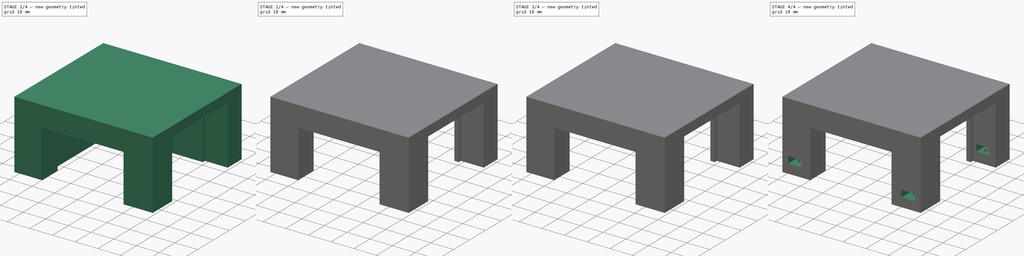
[diagram: build sequence overview — one tinted view per stage of 4, left to right]
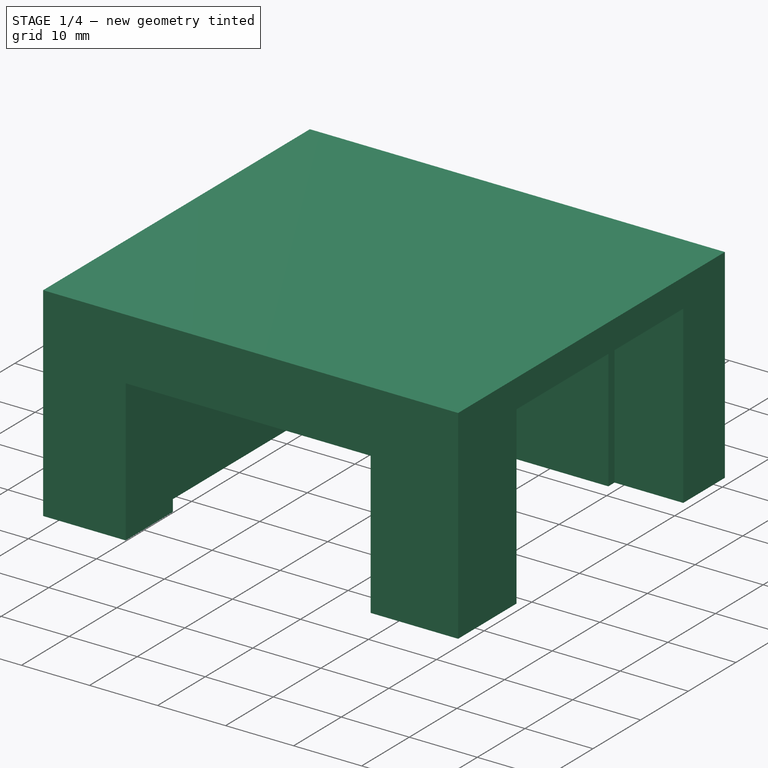
[diagram: stage 1 of 4 — iso view after this stage's code; geometry added in this stage tinted green]
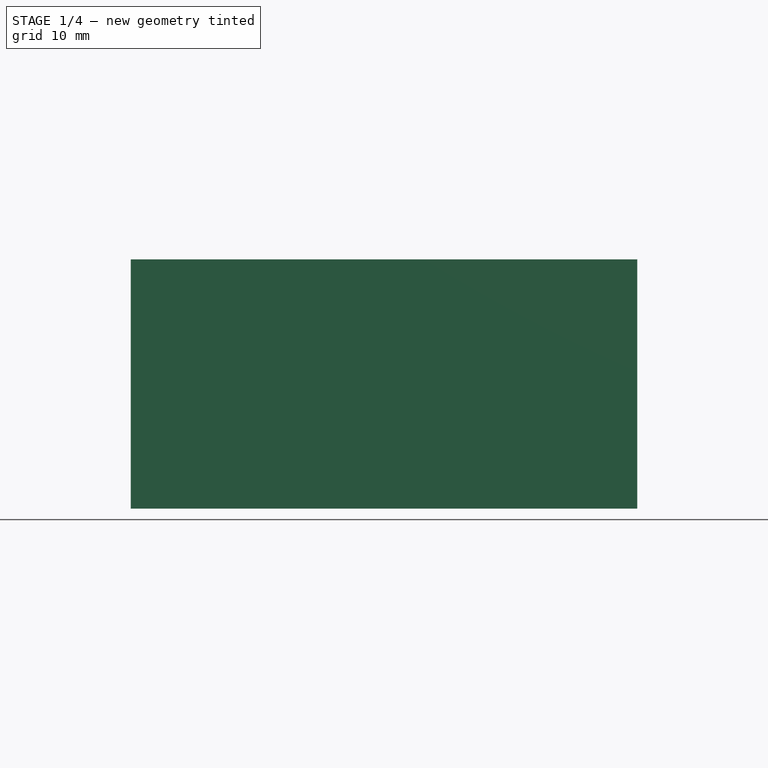
[diagram: stage 1 of 4 — front view after this stage's code; geometry added in this stage tinted green]
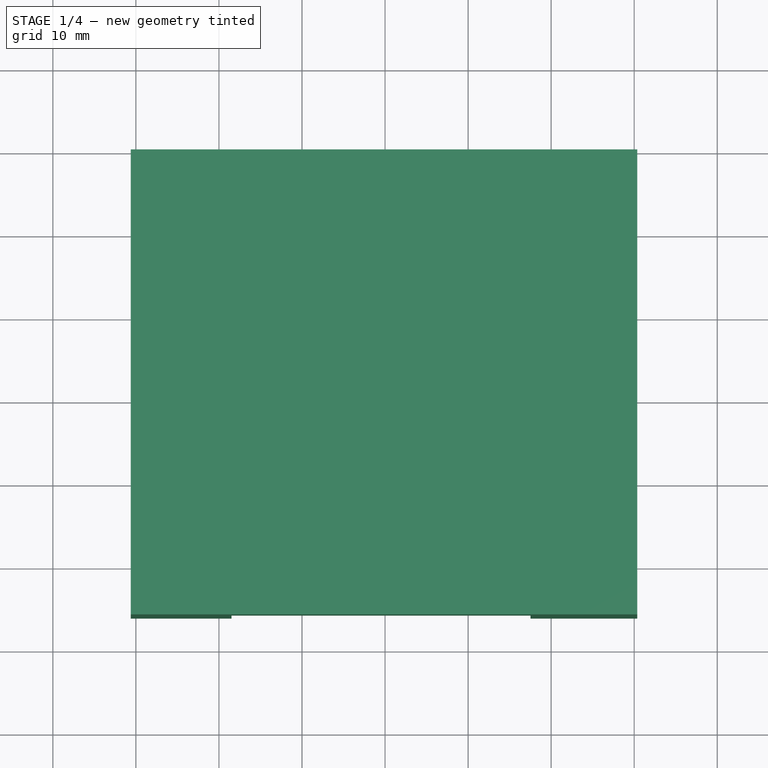
[diagram: stage 1 of 4 — top view after this stage's code; geometry added in this stage tinted green]
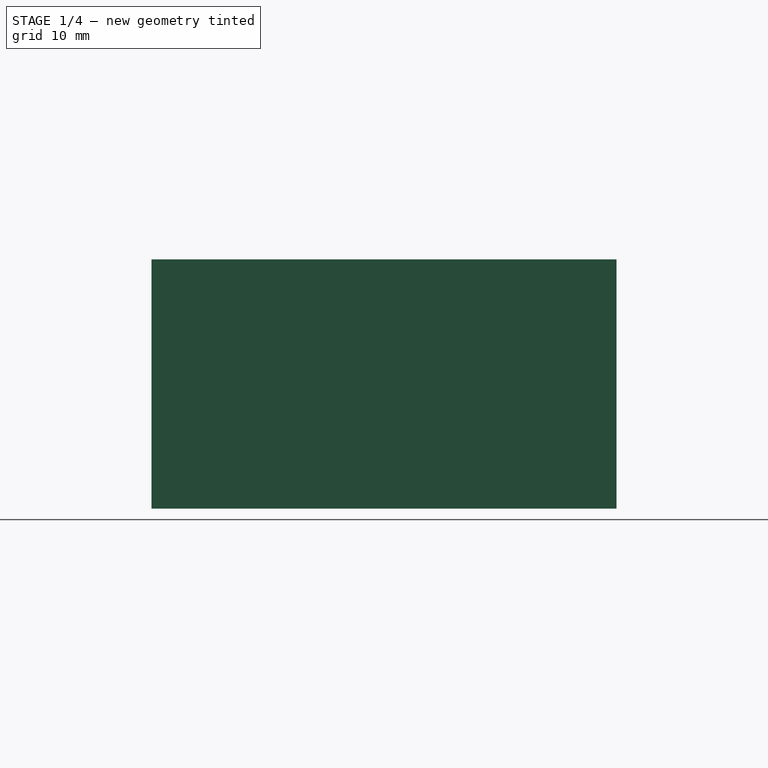
[diagram: stage 1 of 4 — right view after this stage's code; geometry added in this stage tinted green]
FCSTD DOCUMENT  (FreeCAD 0.16RUnknown)
Label: PWM_DC_Motor_Speed_Controller
License: All rights reserved
LicenseURL: http://en.wikipedia.org/wiki/All_rights_reserved
objects: Sketcher::SketchObject×14, PartDesign::Pocket×13, PartDesign::Pad×1
note: 42 computed .brp shape members not serialized (recipe doc carries the construction recipe); baked Part::Feature solids carry a one-line shape summary decoded from their .brp

FEATURE [Sketcher::SketchObject] Sketch
  Placement = pos=(0,0,0) rot=(1,0,0;1.5708rad)
  sketch-geometry (4):
    g0: LineSegment StartX=-20.6259 StartY=2.99057 StartZ=0 EndX=40.3741 EndY=2.99057 EndZ=0
    g1: LineSegment StartX=40.3741 StartY=2.99057 StartZ=0 EndX=40.3741 EndY=-27.0094 EndZ=0
    g2: LineSegment StartX=40.3741 StartY=-27.0094 StartZ=0 EndX=-20.6259 EndY=-27.0094 EndZ=0
    g3: LineSegment StartX=-20.6259 StartY=-27.0094 StartZ=0 EndX=-20.6259 EndY=2.99057 EndZ=0
  constraints (10):
    c: Coincident(g0,g1)
    c: Coincident(g1,g2)
    c: Coincident(g2,g3)
    c: Coincident(g3,g0)
    c: Horizontal(g0)
    c: Horizontal(g2)
    c: Vertical(g1)
    c: Vertical(g3)
    c: DistanceX(g2,g2) = 61
    c: DistanceY(g3,g3) = 30
FEATURE [PartDesign::Pad] Pad
  Length = 56
  Length2 = 100
  Placement = pos=(0,0,0) rot=(1,0,0;1.5708rad)
  Sketch = -> Sketch
  Type = 0
FEATURE [Sketcher::SketchObject] Sketch003
  Placement = pos=(0,0,-27.0094) rot=(1,0,0;3.14159rad)
  Support = -> Pad [Face3]
  sketch-geometry (4):
    g0: LineSegment StartX=-10.5882 StartY=46.0922 StartZ=0 EndX=30.3735 EndY=46.0922 EndZ=0
    g1: LineSegment StartX=30.3735 StartY=46.0922 StartZ=0 EndX=30.3735 EndY=10.0427 EndZ=0
    g2: LineSegment StartX=30.3735 StartY=10.0427 StartZ=0 EndX=-10.5882 EndY=10.0427 EndZ=0
    g3: LineSegment StartX=-10.5882 StartY=10.0427 StartZ=0 EndX=-10.5882 EndY=46.0922 EndZ=0
  constraints (6):
    c: Coincident(g0,g1)
    c: Coincident(g2,g3)
    c: Horizontal(g0)
    c: Horizontal(g2)
    c: Vertical(g1)
    c: Vertical(g3)
FEATURE [PartDesign::Pocket] Pocket
  Length = 29.8
  Placement = pos=(0,0,0) rot=(1,0,0;1.5708rad)
  Sketch = -> Sketch003
  Type = 0
FEATURE [Sketcher::SketchObject] Sketch004
  Placement = pos=(0,-56,0) rot=(1,0,0;1.5708rad)
  Support = -> Pocket [Face5]
  sketch-geometry (5):
    g0: LineSegment StartX=-8.49118 StartY=-27.1291 StartZ=0 EndX=27.5088 EndY=-27.1291 EndZ=0
    g1: LineSegment StartX=27.5088 StartY=-27.1291 StartZ=0 EndX=27.5088 EndY=-6.12909 EndZ=0
    g2: LineSegment StartX=27.5088 StartY=-6.12909 StartZ=0 EndX=-8.49118 EndY=-6.12909 EndZ=0
    g3: LineSegment StartX=-8.49118 StartY=-6.12909 StartZ=0 EndX=-8.49118 EndY=-27.1291 EndZ=0
    g4: GeomPoint [constr] X=-20.4912 Y=-27.0237 Z=0
  constraints (11):
    c: Coincident(g0,g1)
    c: Coincident(g1,g2)
    c: Coincident(g2,g3)
    c: Coincident(g3,g0)
    c: Horizontal(g0)
    c: Horizontal(g2)
    c: Vertical(g1)
    c: Vertical(g3)
    c: DistanceX(g2,g2) = 36
    c: DistanceY(g1,g1) = 21
    c: Distance(g4,g3) = 12
FEATURE [PartDesign::Pocket] Pocket001
  Length = 10
  Placement = pos=(0,0,0) rot=(1,0,0;1.5708rad)
  Sketch = -> Sketch004
  Type = 0
FEATURE [Sketcher::SketchObject] Sketch005
  Placement = pos=(40.3741,0,0) rot=(0.707107,0,0.707107;3.14159rad)
  Support = -> Pocket001 [Face3]
  sketch-geometry (5):
    g0: LineSegment StartX=-27.2042 StartY=43.7356 StartZ=0 EndX=-1.2042 EndY=43.7356 EndZ=0
    g1: LineSegment StartX=-1.2042 StartY=43.7356 StartZ=0 EndX=-1.2042 EndY=8.73557 EndZ=0
    g2: LineSegment StartX=-1.2042 StartY=8.73557 StartZ=0 EndX=-27.2042 EndY=8.73557 EndZ=0
    g3: LineSegment StartX=-27.2042 StartY=8.73557 StartZ=0 EndX=-27.2042 EndY=43.7356 EndZ=0
    g4: GeomPoint [constr] X=-27.0078 Y=55.7356 Z=0
  constraints (11):
    c: Coincident(g0,g1)
    c: Coincident(g1,g2)
    c: Coincident(g2,g3)
    c: Coincident(g3,g0)
    c: Horizontal(g0)
    c: Horizontal(g2)
    c: Vertical(g1)
    c: Vertical(g3)
    c: Distance(g4,g0) = 12
    c: DistanceY(g1,g1) = 35
    c: DistanceX(g0,g0) = 26
FEATURE [PartDesign::Pocket] Pocket002
  Length = 10.1
  Placement = pos=(0,0,0) rot=(1,0,0;1.5708rad)
  Sketch = -> Sketch005
  Type = 0
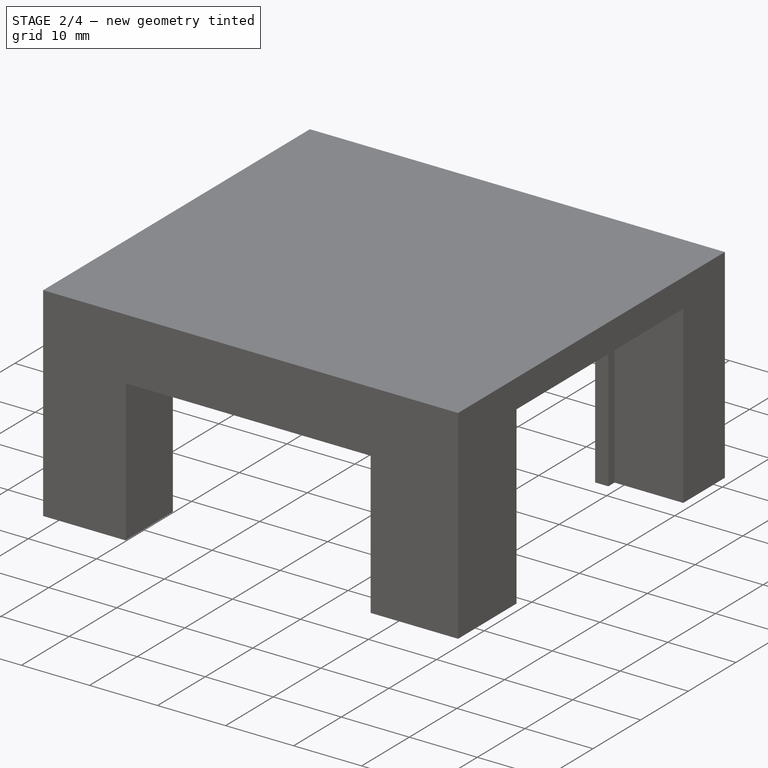
[diagram: stage 2 of 4 — iso view after this stage's code; geometry added in this stage tinted green]
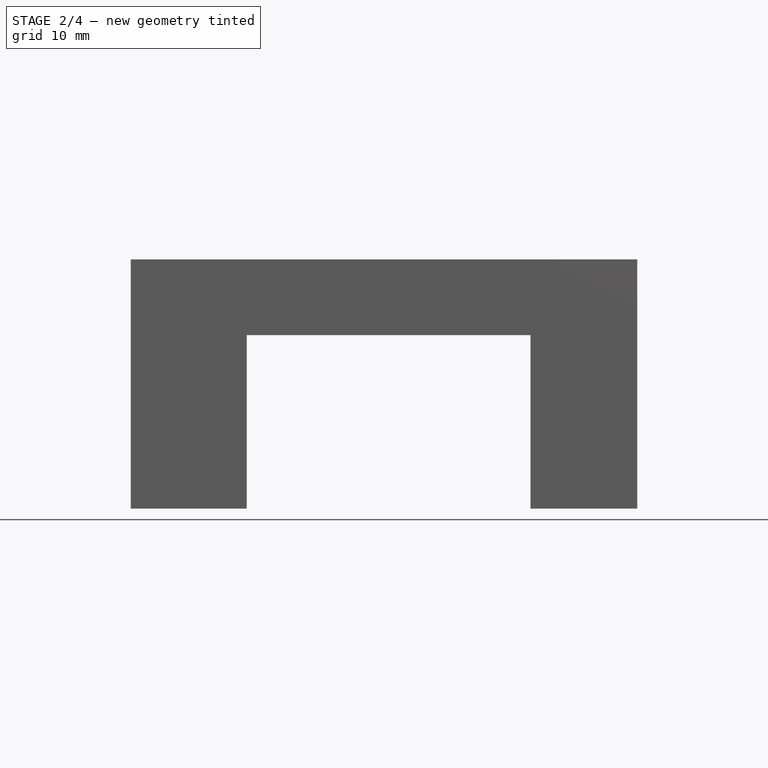
[diagram: stage 2 of 4 — front view after this stage's code; geometry added in this stage tinted green]
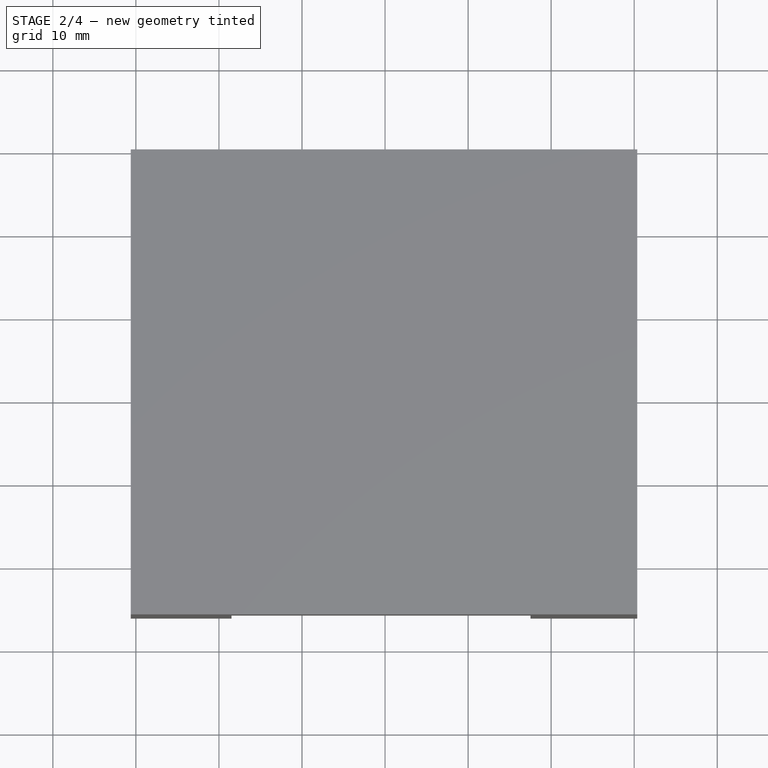
[diagram: stage 2 of 4 — top view after this stage's code; geometry added in this stage tinted green]
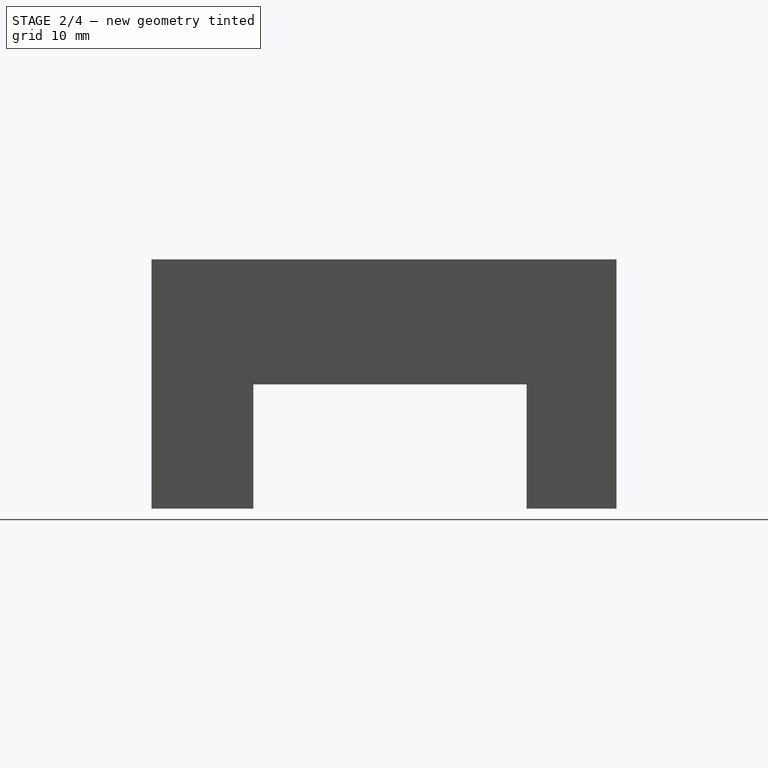
[diagram: stage 2 of 4 — right view after this stage's code; geometry added in this stage tinted green]
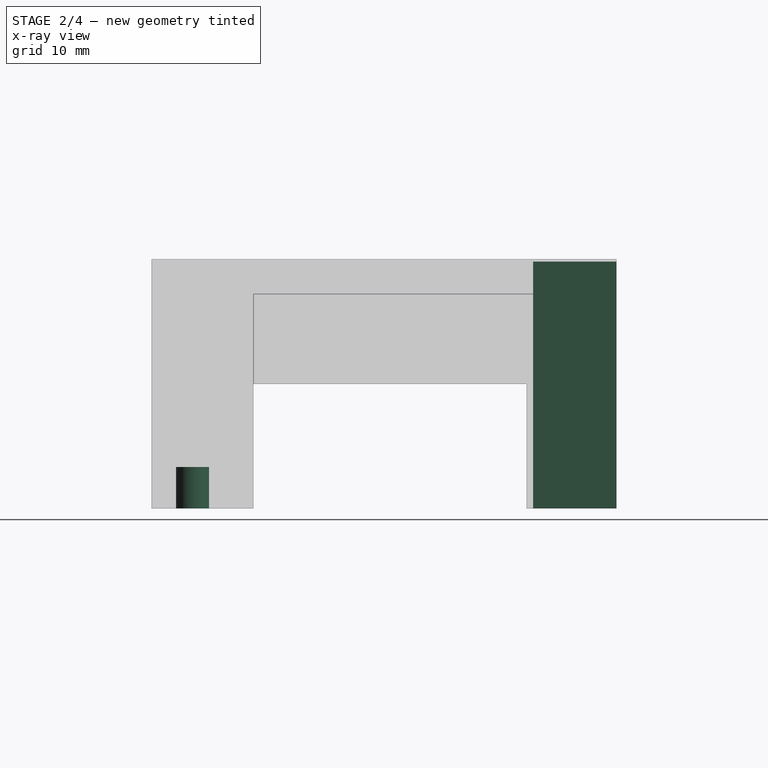
[diagram: stage 2 of 4 — x-ray composite at the right view; earlier geometry ghosted, this stage's added geometry solid]
FEATURE [Sketcher::SketchObject] Sketch006
  Placement = pos=(0,0,0) rot=(-1,0,0;1.5708rad)
  Support = -> Pocket002 [Face4]
  sketch-geometry (6):
    g0: LineSegment StartX=-6.65601 StartY=27.0383 StartZ=0 EndX=28.344 EndY=27.0383 EndZ=0
    g1: LineSegment StartX=28.344 StartY=27.0383 StartZ=0 EndX=28.344 EndY=-2.72693 EndZ=0
    g2: LineSegment StartX=28.344 StartY=-2.72693 StartZ=0 EndX=-6.65601 EndY=-2.72693 EndZ=0
    g3: LineSegment StartX=-6.65601 StartY=-2.72693 StartZ=0 EndX=-6.65601 EndY=27.0383 EndZ=0
    g4: GeomPoint [constr] X=40.344 Y=26.9689 Z=0
    g5: GeomPoint [constr] X=28.3851 Y=-2.92693 Z=0
  constraints (11):
    c: Coincident(g0,g1)
    c: Coincident(g1,g2)
    c: Coincident(g2,g3)
    c: Coincident(g3,g0)
    c: Horizontal(g0)
    c: Horizontal(g2)
    c: Vertical(g1)
    c: Vertical(g3)
    c: Distance(g4,g1) = 12
    c: DistanceX(g0,g0) = 35
    c: Distance(g5,g2) = 0.2
FEATURE [PartDesign::Pocket] Pocket003
  Length = 10.1
  Placement = pos=(0,0,0) rot=(1,0,0;1.5708rad)
  Sketch = -> Sketch006
  Type = 0
FEATURE [Sketcher::SketchObject] Sketch007
  Placement = pos=(-20.6259,0,0) rot=(0.707107,0,-0.707107;3.14159rad)
  Support = -> Pocket003 [Face2]
  sketch-geometry (5):
    g0: LineSegment StartX=27.0499 StartY=43.8272 StartZ=0 EndX=12.0499 EndY=43.8272 EndZ=0
    g1: LineSegment StartX=12.0499 StartY=43.8272 StartZ=0 EndX=12.0499 EndY=10.8272 EndZ=0
    g2: LineSegment StartX=12.0499 StartY=10.8272 StartZ=0 EndX=27.0499 EndY=10.8272 EndZ=0
    g3: LineSegment StartX=27.0499 StartY=10.8272 StartZ=0 EndX=27.0499 EndY=43.8272 EndZ=0
    g4: GeomPoint [constr] X=27.0023 Y=55.8272 Z=0
  constraints (11):
    c: Coincident(g0,g1)
    c: Coincident(g1,g2)
    c: Coincident(g2,g3)
    c: Coincident(g3,g0)
    c: Horizontal(g0)
    c: Horizontal(g2)
    c: Vertical(g1)
    c: Vertical(g3)
    c: DistanceY(g1,g1) = 33
    c: DistanceX(g0,g0) = 15
    c: Distance(g4,g0) = 12
FEATURE [PartDesign::Pocket] Pocket004
  Length = 10.1
  Placement = pos=(0,0,0) rot=(1,0,0;1.5708rad)
  Sketch = -> Sketch007
  Type = 0
FEATURE [Sketcher::SketchObject] Sketch009
  Placement = pos=(0,0,-27.0094) rot=(1,0,0;3.14159rad)
  Support = -> Pocket004 [Face6]
  sketch-geometry (2):
    g0: GeomPoint [constr] X=-15.0023 Y=51.0595 Z=0
    g1: Circle CenterX=-15.0023 CenterY=51.0595 CenterZ=0 NormalX=0 NormalY=0 NormalZ=1 Radius=2
  constraints (1):
    c: Radius(g1) = 2
FEATURE [PartDesign::Pocket] Pocket005
  Length = 5
  Placement = pos=(0,0,0) rot=(1,0,0;1.5708rad)
  Sketch = -> Sketch009
  Type = 0
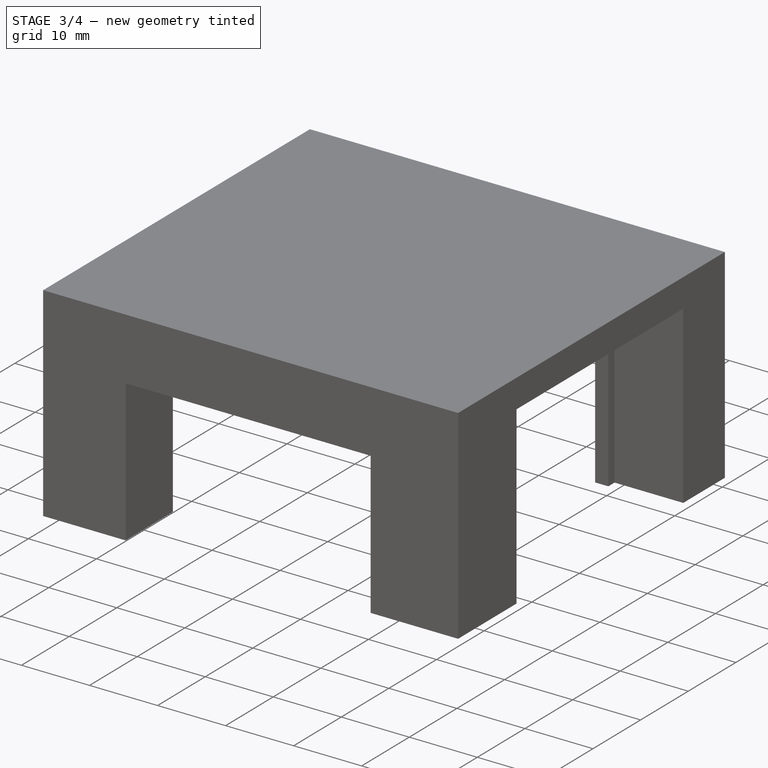
[diagram: stage 3 of 4 — iso view after this stage's code; geometry added in this stage tinted green]
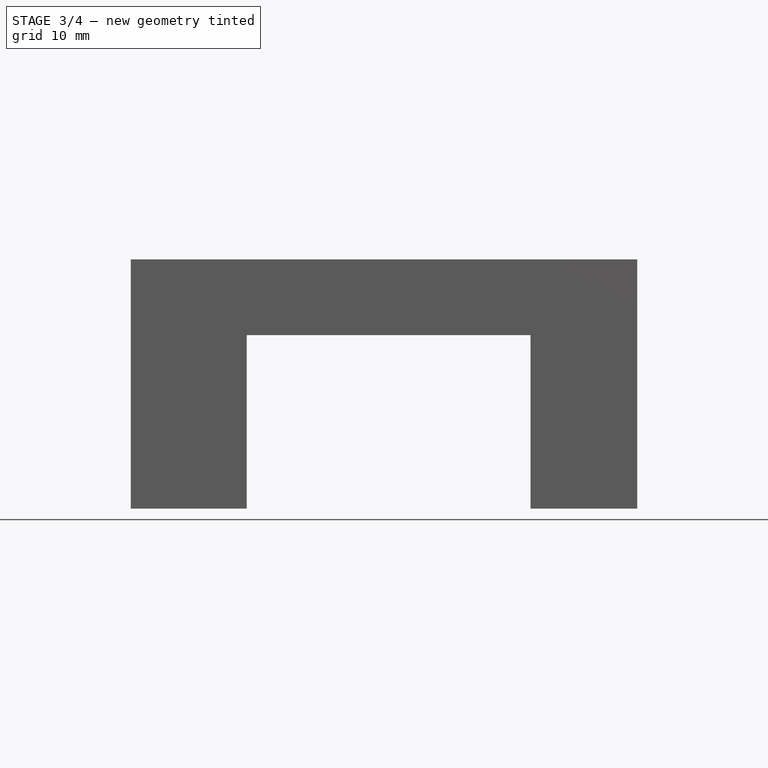
[diagram: stage 3 of 4 — front view after this stage's code; geometry added in this stage tinted green]
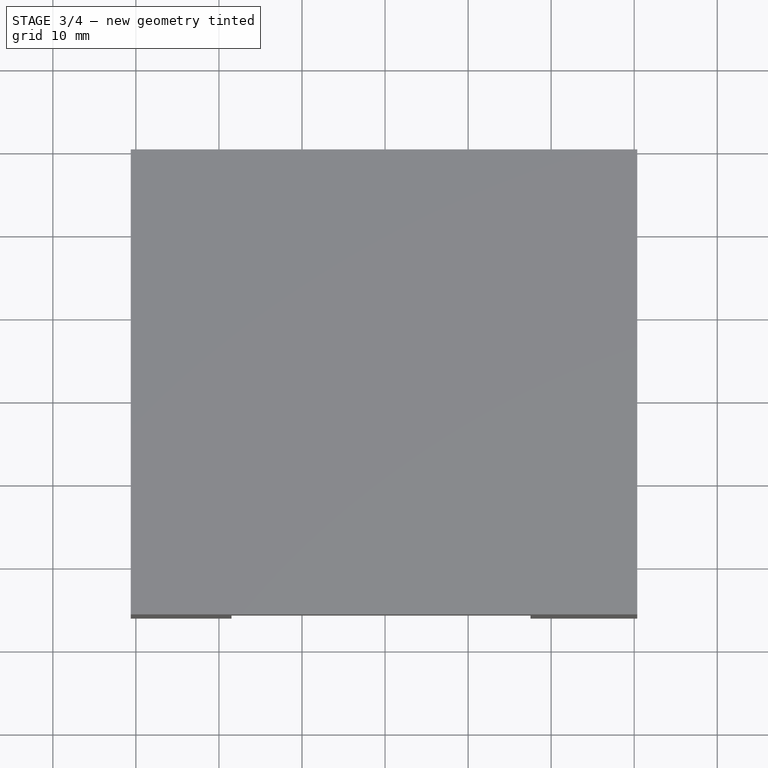
[diagram: stage 3 of 4 — top view after this stage's code; geometry added in this stage tinted green]
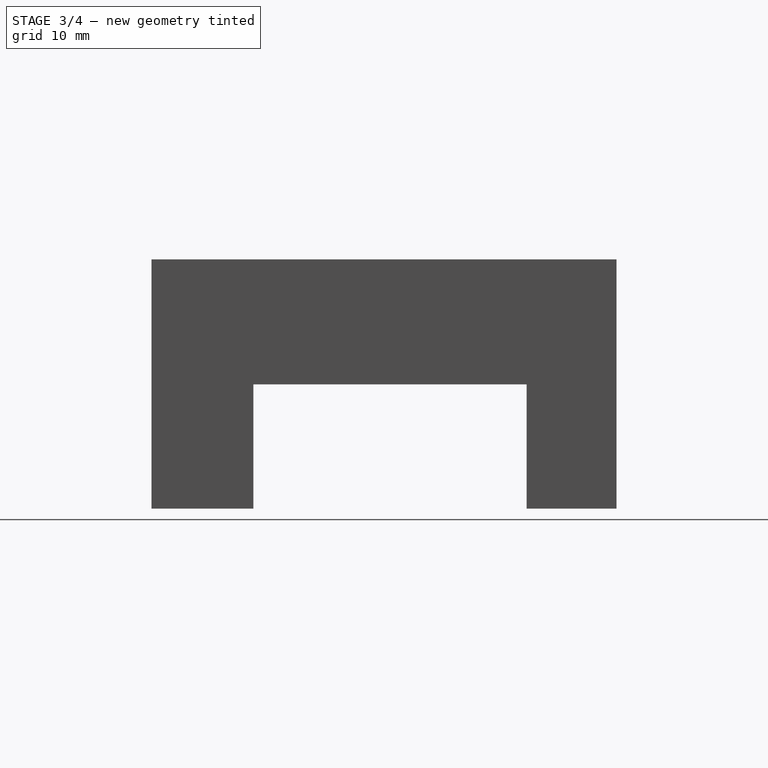
[diagram: stage 3 of 4 — right view after this stage's code; geometry added in this stage tinted green]
FEATURE [Sketcher::SketchObject] Sketch010
  Placement = pos=(0,0,-27.0094) rot=(1,0,0;3.14159rad)
  Support = -> Pocket005 [Face15]
  sketch-geometry (2):
    g0: GeomPoint [constr] X=35.0711 Y=50.1251 Z=0
    g1: Circle CenterX=35.0711 CenterY=50.1251 CenterZ=0 NormalX=0 NormalY=0 NormalZ=1 Radius=2
  constraints (2):
    c: Coincident(g1,g0)
    c: Radius(g1) = 2
FEATURE [PartDesign::Pocket] Pocket006
  Length = 15
  Placement = pos=(0,0,0) rot=(1,0,0;1.5708rad)
  Sketch = -> Sketch010
  Type = 0
FEATURE [Sketcher::SketchObject] Sketch011
  Placement = pos=(0,0,-27.0094) rot=(1,0,0;3.14159rad)
  Support = -> Pocket006 [Face10]
  sketch-geometry (2):
    g0: GeomPoint [constr] X=-15.2149 Y=4.97858 Z=0
    g1: Circle CenterX=-15.2149 CenterY=4.97858 CenterZ=0 NormalX=0 NormalY=0 NormalZ=1 Radius=2
  constraints (1):
    c: Radius(g1) = 2
FEATURE [PartDesign::Pocket] Pocket007
  Length = 15
  Placement = pos=(0,0,0) rot=(1,0,0;1.5708rad)
  Sketch = -> Sketch011
  Type = 0
FEATURE [Sketcher::SketchObject] Sketch012
  Placement = pos=(0,0,-27.0094) rot=(1,0,0;3.14159rad)
  Support = -> Pocket007 [Face11]
  sketch-geometry (2):
    g0: GeomPoint [constr] X=35.0456 Y=5.03398 Z=0
    g1: Circle CenterX=35.0456 CenterY=5.03398 CenterZ=0 NormalX=0 NormalY=0 NormalZ=1 Radius=2
  constraints (2):
    c: Coincident(g1,g0)
    c: Radius(g1) = 2
FEATURE [PartDesign::Pocket] Pocket008
  Length = 15
  Placement = pos=(0,0,0) rot=(1,0,0;1.5708rad)
  Sketch = -> Sketch012
  Type = 0
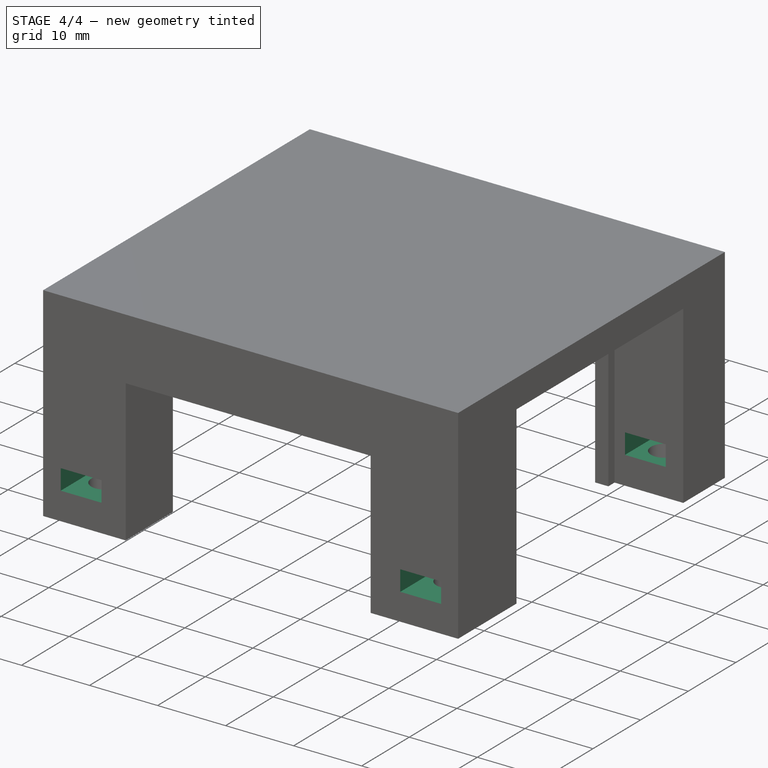
[diagram: stage 4 of 4 — iso view after this stage's code; geometry added in this stage tinted green]
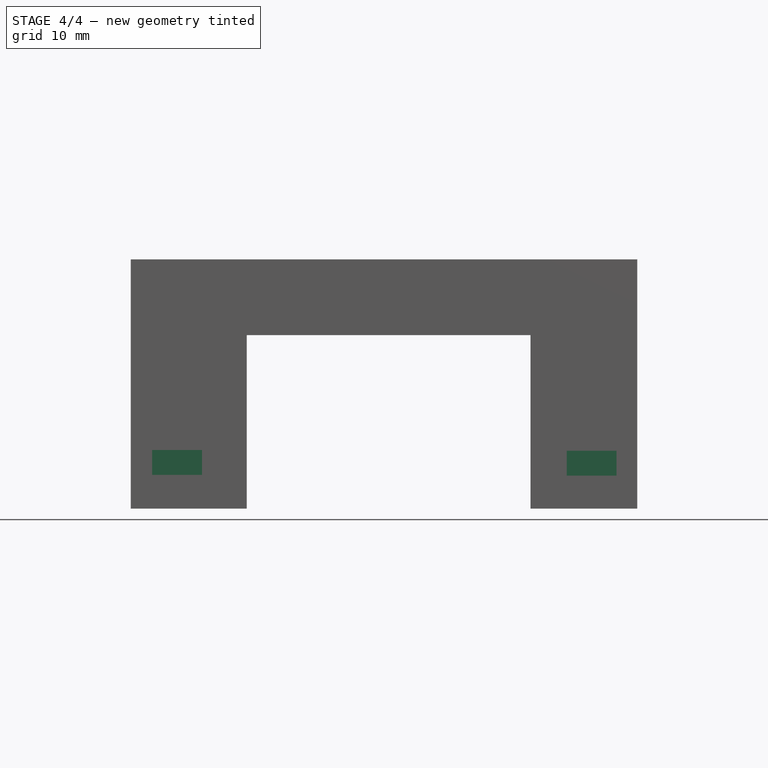
[diagram: stage 4 of 4 — front view after this stage's code; geometry added in this stage tinted green]
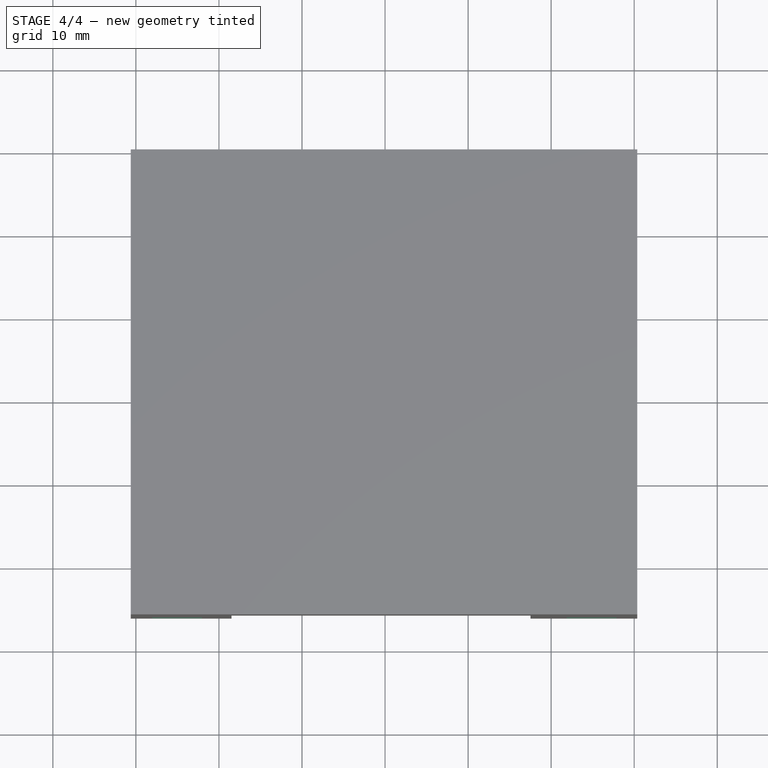
[diagram: stage 4 of 4 — top view after this stage's code; geometry added in this stage tinted green]
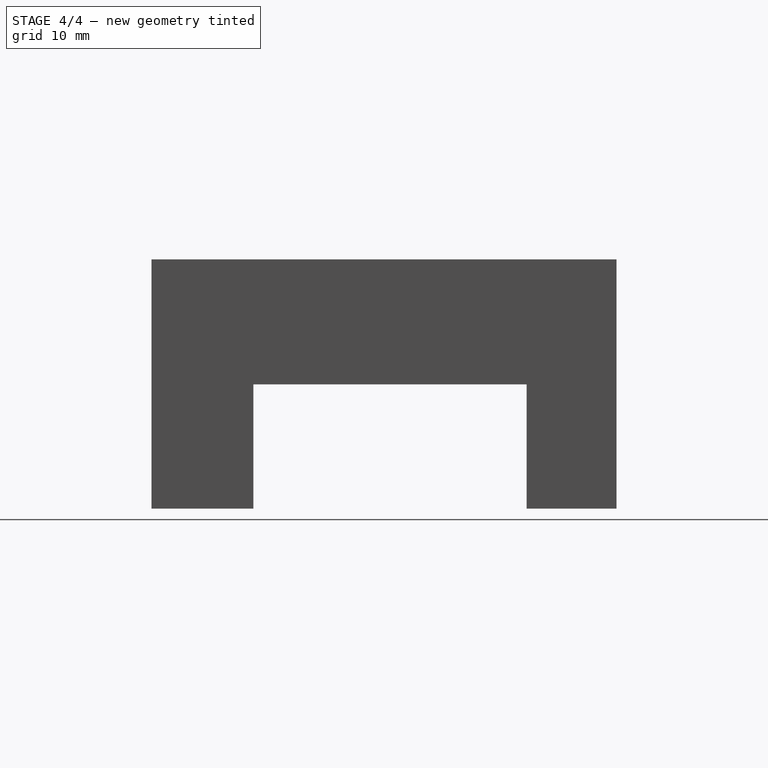
[diagram: stage 4 of 4 — right view after this stage's code; geometry added in this stage tinted green]
FEATURE [Sketcher::SketchObject] Sketch013
  Placement = pos=(0,-56,0) rot=(1,0,0;1.5708rad)
  Support = -> Pocket008 [Face5]
  sketch-geometry (6):
    g0: LineSegment StartX=31.8764 StartY=-20.0418 StartZ=0 EndX=37.8764 EndY=-20.0418 EndZ=0
    g1: LineSegment StartX=37.8764 StartY=-20.0418 StartZ=0 EndX=37.8764 EndY=-23.0418 EndZ=0
    g2: LineSegment StartX=37.8764 StartY=-23.0418 StartZ=0 EndX=31.8764 EndY=-23.0418 EndZ=0
    g3: LineSegment StartX=31.8764 StartY=-23.0418 StartZ=0 EndX=31.8764 EndY=-20.0418 EndZ=0
    g4: GeomPoint [constr] X=40.3764 Y=-20.0312 Z=0
    g5: GeomPoint [constr] X=37.2344 Y=-27.0418 Z=0
  constraints (12):
    c: Coincident(g0,g1)
    c: Coincident(g1,g2)
    c: Coincident(g2,g3)
    c: Coincident(g3,g0)
    c: Horizontal(g0)
    c: Horizontal(g2)
    c: Vertical(g1)
    c: Vertical(g3)
    c: Distance(g4,g1) = 2.5
    c: DistanceX(g2,g2) = 6
    c: Distance(g5,g2) = 4
    c: DistanceY(g1,g1) = 3
FEATURE [PartDesign::Pocket] Pocket009
  Length = 10
  Placement = pos=(0,0,0) rot=(1,0,0;1.5708rad)
  Sketch = -> Sketch013
  Type = 0
FEATURE [Sketcher::SketchObject] Sketch014
  Placement = pos=(0,-56,0) rot=(1,0,0;1.5708rad)
  Support = -> Pocket009 [Face5]
  sketch-geometry (6):
    g0: LineSegment StartX=-18.0417 StartY=-19.9559 StartZ=0 EndX=-12.0417 EndY=-19.9559 EndZ=0
    g1: LineSegment StartX=-12.0417 StartY=-19.9559 StartZ=0 EndX=-12.0417 EndY=-22.9559 EndZ=0
    g2: LineSegment StartX=-12.0417 StartY=-22.9559 StartZ=0 EndX=-18.0417 EndY=-22.9559 EndZ=0
    g3: LineSegment StartX=-18.0417 StartY=-22.9559 StartZ=0 EndX=-18.0417 EndY=-19.9559 EndZ=0
    g4: GeomPoint [constr] X=-14.759 Y=-26.9559 Z=0
    g5: GeomPoint [constr] X=-20.5417 Y=-21.6762 Z=0
  constraints (12):
    c: Coincident(g0,g1)
    c: Coincident(g1,g2)
    c: Coincident(g2,g3)
    c: Coincident(g3,g0)
    c: Horizontal(g0)
    c: Horizontal(g2)
    c: Vertical(g1)
    c: Vertical(g3)
    c: DistanceY(g1,g1) = 3
    c: DistanceX(g0,g0) = 6
    c: Distance(g5,g3) = 2.5
    c: Distance(g4,g2) = 4
FEATURE [PartDesign::Pocket] Pocket010
  Length = 10
  Placement = pos=(0,0,0) rot=(1,0,0;1.5708rad)
  Sketch = -> Sketch014
  Type = 0
FEATURE [Sketcher::SketchObject] Sketch015
  Placement = pos=(0,0,0) rot=(-1,0,0;1.5708rad)
  Support = -> Pocket010 [Face4]
  sketch-geometry (6):
    g0: LineSegment StartX=-18.0607 StartY=22.9404 StartZ=0 EndX=-12.0607 EndY=22.9404 EndZ=0
    g1: LineSegment StartX=-12.0607 StartY=22.9404 StartZ=0 EndX=-12.0607 EndY=19.9404 EndZ=0
    g2: LineSegment StartX=-12.0607 StartY=19.9404 StartZ=0 EndX=-18.0607 EndY=19.9404 EndZ=0
    g3: LineSegment StartX=-18.0607 StartY=19.9404 StartZ=0 EndX=-18.0607 EndY=22.9404 EndZ=0
    g4: GeomPoint [constr] X=-13.7781 Y=26.9404 Z=0
    g5: GeomPoint [constr] X=-20.5607 Y=22.4105 Z=0
  constraints (12):
    c: Coincident(g0,g1)
    c: Coincident(g1,g2)
    c: Coincident(g2,g3)
    c: Coincident(g3,g0)
    c: Horizontal(g0)
    c: Horizontal(g2)
    c: Vertical(g1)
    c: Vertical(g3)
    c: DistanceY(g1,g1) = 3
    c: DistanceX(g2,g2) = 6
    c: Distance(g4,g0) = 4
    c: Distance(g5,g3) = 2.5
FEATURE [PartDesign::Pocket] Pocket011
  Length = 10
  Placement = pos=(0,0,0) rot=(1,0,0;1.5708rad)
  Sketch = -> Sketch015
  Type = 0
FEATURE [Sketcher::SketchObject] Sketch016
  Placement = pos=(0,0,0) rot=(-1,0,0;1.5708rad)
  Support = -> Pocket011 [Face4]
  sketch-geometry (7):
    g0: LineSegment StartX=31.8049 StartY=22.9199 StartZ=0 EndX=37.8049 EndY=22.9199 EndZ=0
    g1: LineSegment StartX=37.8049 StartY=22.9199 StartZ=0 EndX=37.8049 EndY=19.9199 EndZ=0
    g2: LineSegment StartX=37.8049 StartY=19.9199 StartZ=0 EndX=31.8049 EndY=19.9199 EndZ=0
    g3: LineSegment StartX=31.8049 StartY=19.9199 StartZ=0 EndX=31.8049 EndY=22.9199 EndZ=0
    g4: GeomPoint [constr] X=33.4215 Y=26.9199 Z=0
    g5: GeomPoint [constr] X=28.3444 Y=22.468 Z=0
    g6: GeomPoint [constr] X=40.3049 Y=21.8253 Z=0
  constraints (12):
    c: Coincident(g0,g1)
    c: Coincident(g1,g2)
    c: Coincident(g2,g3)
    c: Coincident(g3,g0)
    c: Horizontal(g0)
    c: Horizontal(g2)
    c: Vertical(g1)
    c: Vertical(g3)
    c: DistanceY(g1,g1) = 3
    c: DistanceX(g2,g2) = 6
    c: Distance(g6,g1) = 2.5
    c: Distance(g4,g0) = 4
FEATURE [PartDesign::Pocket] Pocket012
  Length = 10
  Placement = pos=(0,0,0) rot=(1,0,0;1.5708rad)
  Sketch = -> Sketch016
  Type = 0
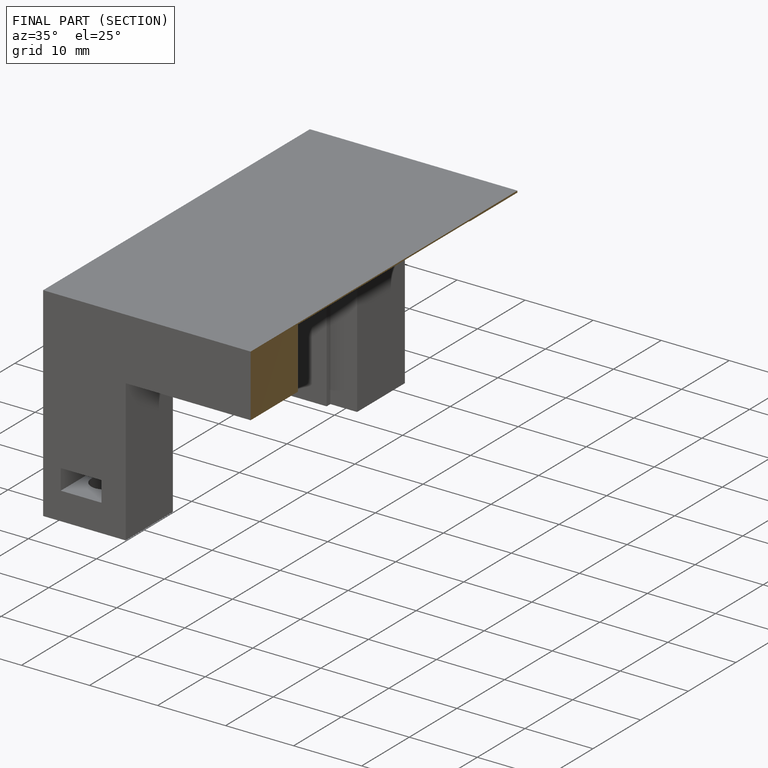
[diagram: finished part — half-section view (interior)]
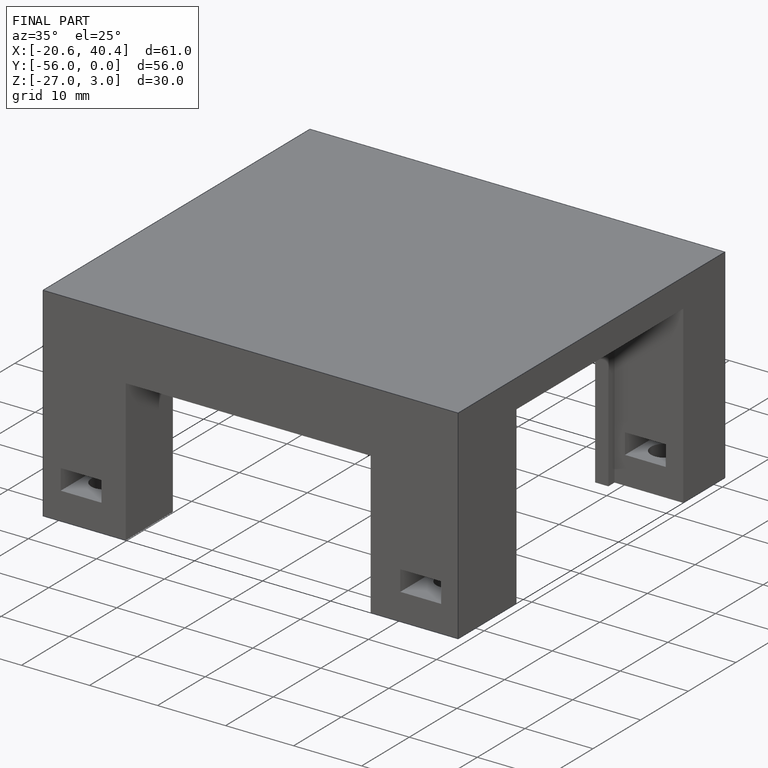
[diagram: finished part — iso view with bounding-box wireframe]
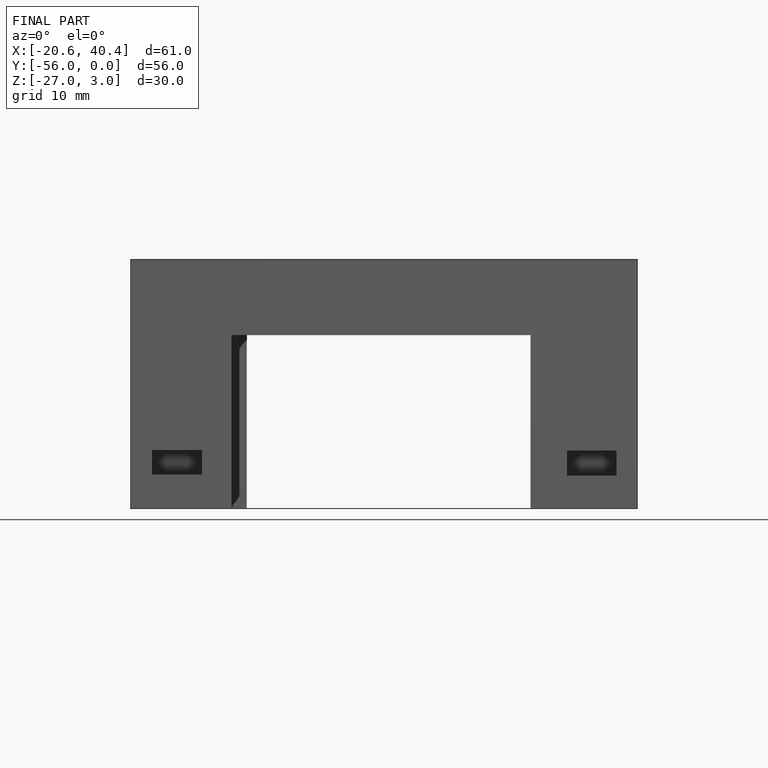
[diagram: finished part — front view with bounding-box wireframe]
